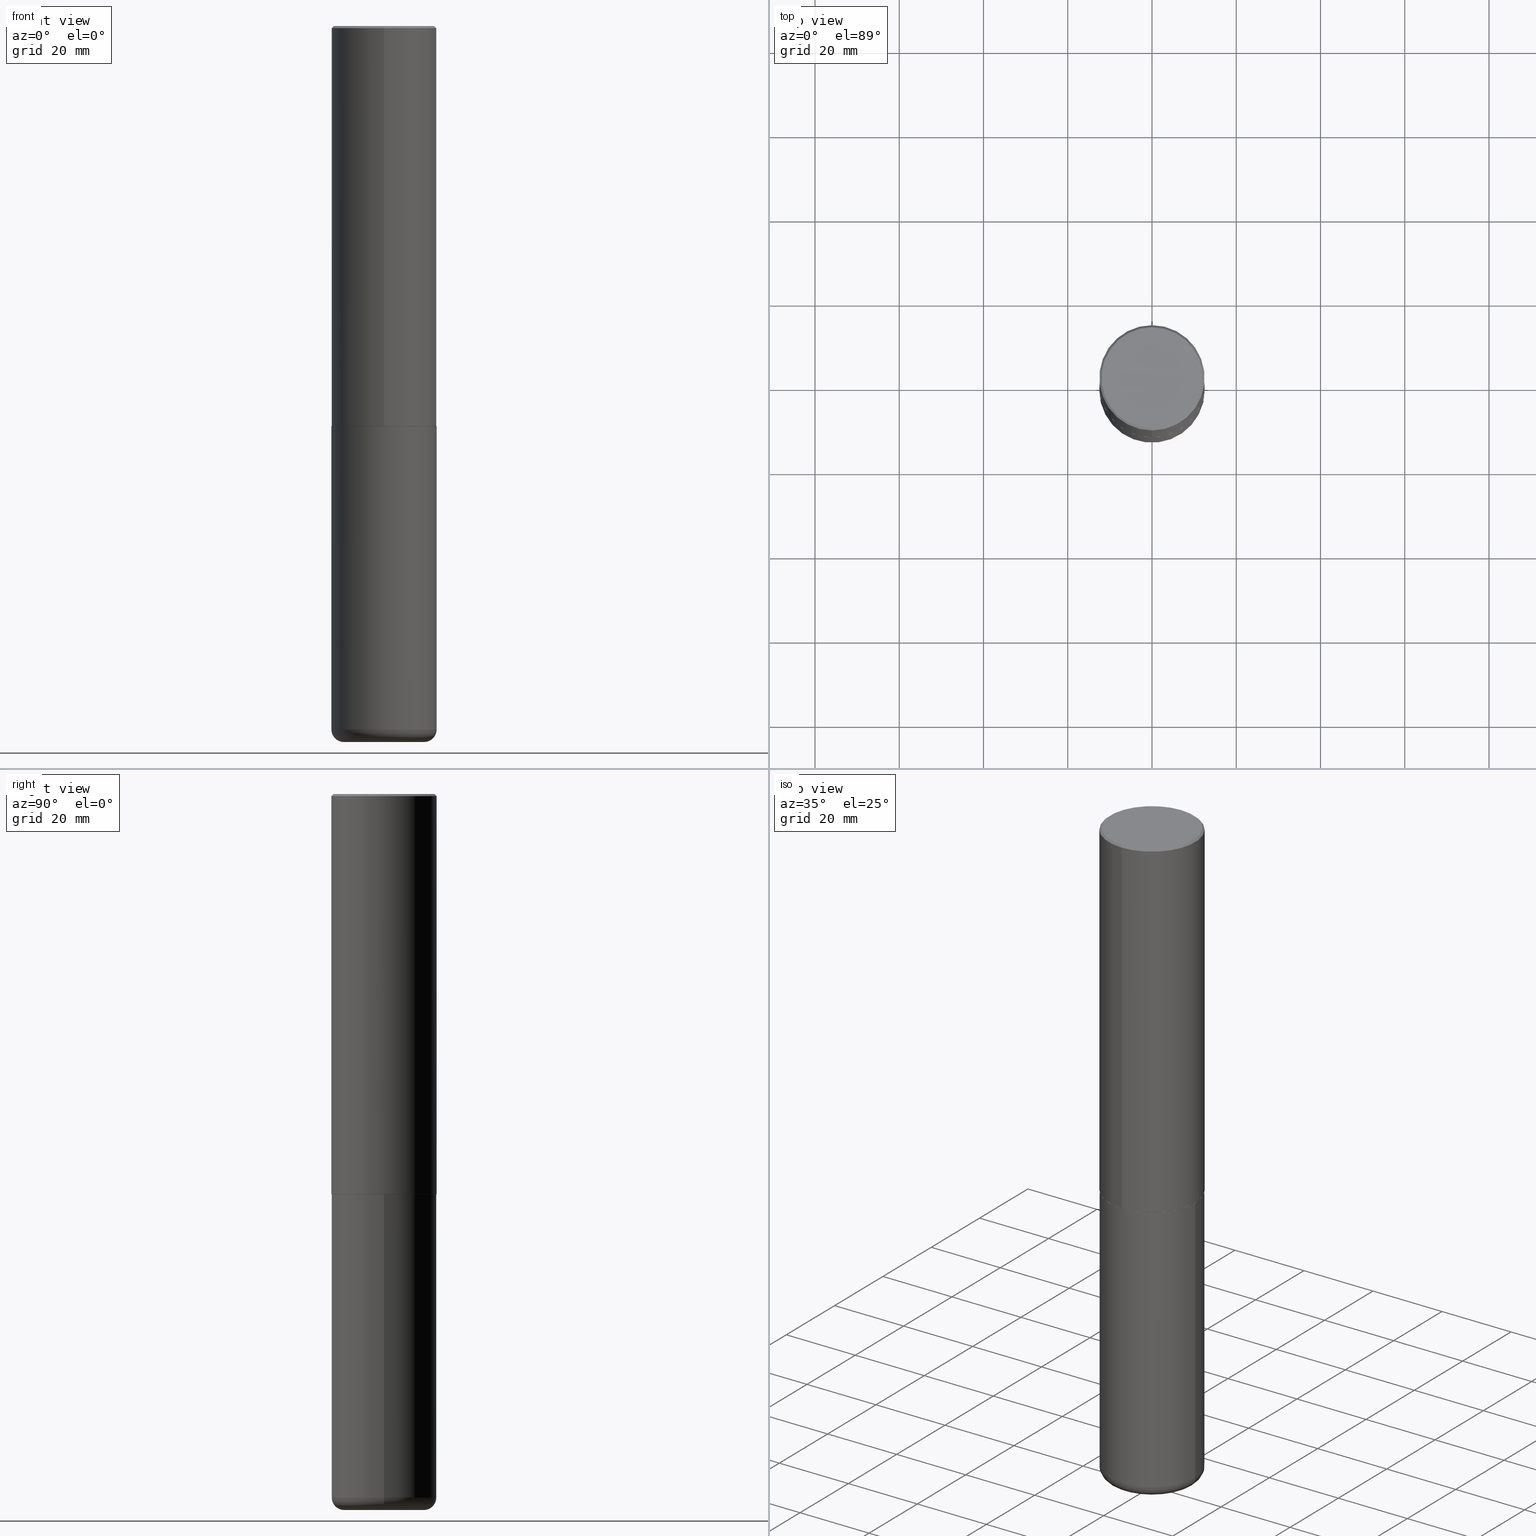
[diagram: canonical four-view strip — front | top / right | iso, engineering-drawing reading convention]
A machine part, canonical four-view strip (front | top / right | iso — engineering-drawing reading convention). The complete STEP part file that produces these views, byte-faithful:
ISO-10303-21;
HEADER;
FILE_DESCRIPTION (( 'STEP AP203' ),
    '1' );
FILE_NAME ('47624.STEP',
    '2024-03-06T19:43:23',
    ( '' ),
    ( '' ),
    'SwSTEP 2.0',
    'SolidWorks 2023',
    '' );
FILE_SCHEMA (( 'CONFIG_CONTROL_DESIGN' ));
ENDSEC;

DATA;
#1 = CARTESIAN_POINT ( 'NONE',  ( 0.000000000000000000, 0.000000000000000000, 0.000000000000000000 ) ) ;
#2 = ORIENTED_EDGE ( 'NONE', *, *, #140, .F. ) ;
#3 = VECTOR ( 'NONE', #330, 39.37007874015748143 ) ;
#4 = AXIS2_PLACEMENT_3D ( 'NONE', #415, #261, #34 ) ;
#5 = DIRECTION ( 'NONE',  ( 6.982962677686265922E-15, 1.000000000000000000, -3.486624039460257331E-15 ) ) ;
#6 = VERTEX_POINT ( 'NONE', #179 ) ;
#7 = COORDINATED_UNIVERSAL_TIME_OFFSET ( 5, 0, .BEHIND. ) ;
#8 = ORIENTED_EDGE ( 'NONE', *, *, #373, .T. ) ;
#9 = LINE ( 'NONE', #110, #3 ) ;
#10 = AXIS2_PLACEMENT_3D ( 'NONE', #214, #92, #345 ) ;
#11 = DIRECTION ( 'NONE',  ( 2.438088387897960049E-29, -3.491481338843145188E-15, -1.000000000000000000 ) ) ;
#12 = APPROVAL_DATE_TIME ( #234, #43 ) ;
#13 = PLANE ( 'NONE',  #376 ) ;
#14 = EDGE_CURVE ( 'NONE', #258, #360, #259, .T. ) ;
#15 = APPLICATION_PROTOCOL_DEFINITION ( 'international standard', 'config_control_design', 1994, #253 ) ;
#16 = DIRECTION ( 'NONE',  ( -2.445468806185136597E-29, 3.491481338843145583E-15, 1.000000000000000000 ) ) ;
#17 = CIRCLE ( 'NONE', #255, 0.1181000000000000383 ) ;
#18 = CARTESIAN_POINT ( 'NONE',  ( 4.891953188903329688E-31, -6.981508314288001687E-17, -0.02000000000000010797 ) ) ;
#19 = CARTESIAN_POINT ( 'NONE',  ( 0.000000000000000000, 0.000000000000000000, 0.000000000000000000 ) ) ;
#20 = CARTESIAN_POINT ( 'NONE',  ( 0.000000000000000000, 0.000000000000000000, 0.000000000000000000 ) ) ;
#21 = APPLICATION_CONTEXT ( 'configuration controlled 3d designs of mechanical parts and assemblies' ) ;
#22 = VECTOR ( 'NONE', #239, 39.37007874015748143 ) ;
#23 = AXIS2_PLACEMENT_3D ( 'NONE', #359, #65, #29 ) ;
#24 = LINE ( 'NONE', #28, #122 ) ;
#25 = ADVANCED_FACE ( 'NONE', ( #79 ), #82, .T. ) ;
#26 = CARTESIAN_POINT ( 'NONE',  ( 0.4921499999999999764, -3.436665081823295777E-15, 2.399810400207969603E-29 ) ) ;
#27 = ADVANCED_FACE ( 'NONE', ( #270 ), #13, .T. ) ;
#28 = CARTESIAN_POINT ( 'NONE',  ( -0.4921499999999999764, 3.496936074043332897E-15, -2.420853904668951509E-29 ) ) ;
#29 = DIRECTION ( 'NONE',  ( -1.000000000000000000, 7.105427357601001859E-15, 0.000000000000000000 ) ) ;
#30 = CIRCLE ( 'NONE', #153, 0.4721499999999996255 ) ;
#31 = ORIENTED_EDGE ( 'NONE', *, *, #74, .F. ) ;
#32 = LOCAL_TIME ( 14, 43, 23.00000000000000000, #271 ) ;
#33 = PRODUCT_RELATED_PRODUCT_CATEGORY ( 'detail', '', ( #362 ) ) ;
#34 = DIRECTION ( 'NONE',  ( 6.982962677686265922E-15, 1.000000000000000000, -3.486624039460257331E-15 ) ) ;
#35 = ORIENTED_EDGE ( 'NONE', *, *, #124, .T. ) ;
#36 = ORIENTED_EDGE ( 'NONE', *, *, #124, .F. ) ;
#37 = LINE ( 'NONE', #73, #228 ) ;
#38 = ORIENTED_EDGE ( 'NONE', *, *, #88, .T. ) ;
#39 = AXIS2_PLACEMENT_3D ( 'NONE', #19, #346, #184 ) ;
#40 = APPROVAL_PERSON_ORGANIZATION ( #113, #310, #367 ) ;
#41 = DIRECTION ( 'NONE',  ( -2.445976594451651672E-29, 3.490754157143982552E-15, 1.000000000000000000 ) ) ;
#42 = ORIENTED_EDGE ( 'NONE', *, *, #247, .T. ) ;
#43 = APPROVAL ( #49, 'UNSPECIFIED' ) ;
#44 = COORDINATED_UNIVERSAL_TIME_OFFSET ( 5, 0, .BEHIND. ) ;
#45 = LINE ( 'NONE', #300, #22 ) ;
#46 = CARTESIAN_POINT ( 'NONE',  ( 9.145751084314172604E-29, -1.305227886897706845E-14, -3.739100000000000534 ) ) ;
#47 = CIRCLE ( 'NONE', #327, 0.4911499999999999755 ) ;
#48 = LOCAL_TIME ( 14, 43, 23.00000000000000000, #266 ) ;
#49 = APPROVAL_STATUS ( 'not_yet_approved' ) ;
#50 = LINE ( 'NONE', #85, #89 ) ;
#51 = APPROVAL_STATUS ( 'not_yet_approved' ) ;
#52 = ORIENTED_EDGE ( 'NONE', *, *, #14, .T. ) ;
#53 = APPROVAL_DATE_TIME ( #210, #310 ) ;
#54 = EDGE_LOOP ( 'NONE', ( #42, #139, #2, #31 ) ) ;
#55 = EDGE_CURVE ( 'NONE', #326, #101, #408, .T. ) ;
#56 = CC_DESIGN_APPROVAL ( #310, ( #221 ) ) ;
#57 = DIRECTION ( 'NONE',  ( 1.000000000000000000, -6.982962677686265133E-15, 0.000000000000000000 ) ) ;
#58 = FACE_OUTER_BOUND ( 'NONE', #75, .T. ) ;
#59 = CARTESIAN_POINT ( 'NONE',  ( 9.145751084314172604E-29, -1.305227886897706845E-14, -3.739100000000000534 ) ) ;
#60 = AXIS2_PLACEMENT_3D ( 'NONE', #59, #188, #189 ) ;
#61 = EDGE_CURVE ( 'NONE', #289, #386, #167, .T. ) ;
#62 = APPROVAL_PERSON_ORGANIZATION ( #338, #43, #145 ) ;
#63 = CARTESIAN_POINT ( 'NONE',  ( -3.429682119145517860E-15, -0.4911500000000130206, -3.740099999999998204 ) ) ;
#64 = FACE_OUTER_BOUND ( 'NONE', #54, .T. ) ;
#65 = DIRECTION ( 'NONE',  ( 7.105427357601001859E-15, 1.000000000000000000, -3.491481338843145583E-15 ) ) ;
#66 = ORIENTED_EDGE ( 'NONE', *, *, #273, .T. ) ;
#67 = EDGE_CURVE ( 'NONE', #386, #289, #30, .T. ) ;
#68 = AXIS2_PLACEMENT_3D ( 'NONE', #282, #91, #57 ) ;
#69 = EDGE_LOOP ( 'NONE', ( #129, #246 ) ) ;
#70 = ORIENTED_EDGE ( 'NONE', *, *, #269, .F. ) ;
#71 = FACE_OUTER_BOUND ( 'NONE', #231, .T. ) ;
#72 = ORIENTED_EDGE ( 'NONE', *, *, #140, .T. ) ;
#73 = CARTESIAN_POINT ( 'NONE',  ( -3.436665081823296565E-15, -0.4921500000000000874, 1.717974658438411319E-15 ) ) ;
#74 = EDGE_CURVE ( 'NONE', #262, #163, #50, .T. ) ;
#75 = EDGE_LOOP ( 'NONE', ( #202, #372, #103, #107 ) ) ;
#76 = AXIS2_PLACEMENT_3D ( 'NONE', #294, #160, #105 ) ;
#77 = DIRECTION ( 'NONE',  ( -2.445976594451651952E-29, 3.490754157143982552E-15, 1.000000000000000000 ) ) ;
#78 = PERSON_AND_ORGANIZATION_ROLE ( 'classification_officer' ) ;
#79 = FACE_OUTER_BOUND ( 'NONE', #354, .T. ) ;
#80 = ADVANCED_FACE ( 'NONE', ( #245 ), #177, .T. ) ;
#81 = ORIENTED_EDGE ( 'NONE', *, *, #67, .F. ) ;
#82 = TOROIDAL_SURFACE ( 'NONE', #133, 0.3740499999999999381, 0.1181000000000000660 ) ;
#83 = CIRCLE ( 'NONE', #193, 0.4911499999999999755 ) ;
#84 = EDGE_LOOP ( 'NONE', ( #288, #400, #356, #275 ) ) ;
#85 = CARTESIAN_POINT ( 'NONE',  ( -3.429682119145517860E-15, -0.4911500000000130206, -3.740099999999998204 ) ) ;
#86 = MANIFOLD_SOLID_BREP ( 'Body-Move/Copy2[1]', #216 ) ;
#87 = CARTESIAN_POINT ( 'NONE',  ( 9.148197060908621523E-29, -1.305576962313420868E-14, -3.740099999999999980 ) ) ;
#88 = EDGE_CURVE ( 'NONE', #360, #258, #321, .T. ) ;
#89 = VECTOR ( 'NONE', #114, 39.37007874015748143 ) ;
#90 = CONICAL_SURFACE ( 'NONE', #389, 0.4921499999999999209, 0.7853981633974467247 ) ;
#91 = DIRECTION ( 'NONE',  ( -2.445468806185136597E-29, 3.491481338843145583E-15, 1.000000000000000000 ) ) ;
#92 = DIRECTION ( 'NONE',  ( -2.445976594451651392E-29, 3.490754157143982552E-15, 1.000000000000000000 ) ) ;
#93 = CARTESIAN_POINT ( 'NONE',  ( 9.146297882013029477E-29, -1.305848935540725085E-14, -3.740100000000000424 ) ) ;
#94 = AXIS2_PLACEMENT_3D ( 'NONE', #46, #303, #143 ) ;
#95 = CC_DESIGN_APPROVAL ( #236, ( #159 ) ) ;
#96 = CARTESIAN_POINT ( 'NONE',  ( 1.607846830690603466E-28, -2.295579150662591525E-14, -6.574799999999999756 ) ) ;
#97 = CARTESIAN_POINT ( 'NONE',  ( 0.000000000000000000, 0.000000000000000000, 0.000000000000000000 ) ) ;
#98 = CARTESIAN_POINT ( 'NONE',  ( 9.146297882013029477E-29, -1.305848935540725085E-14, -3.740100000000000424 ) ) ;
#99 = FACE_OUTER_BOUND ( 'NONE', #298, .T. ) ;
#100 = AXIS2_PLACEMENT_3D ( 'NONE', #98, #324, #136 ) ;
#101 = VERTEX_POINT ( 'NONE', #237 ) ;
#102 = PLANE ( 'NONE',  #76 ) ;
#103 = ORIENTED_EDGE ( 'NONE', *, *, #269, .T. ) ;
#104 = CC_DESIGN_PERSON_AND_ORGANIZATION_ASSIGNMENT ( #212, #403, ( #221 ) ) ;
#105 = DIRECTION ( 'NONE',  ( 6.982962677686265922E-15, 1.000000000000000000, -3.490754157143982552E-15 ) ) ;
#106 = DATE_AND_TIME ( #243, #48 ) ;
#107 = ORIENTED_EDGE ( 'NONE', *, *, #209, .F. ) ;
#108 = CONICAL_SURFACE ( 'NONE', #4, 0.4921499999999999209, 0.7853981633974467247 ) ;
#109 = DIRECTION ( 'NONE',  ( 0.000000000000000000, 0.000000000000000000, 1.000000000000000000 ) ) ;
#110 = CARTESIAN_POINT ( 'NONE',  ( 3.496936074043333291E-15, 0.4921500000000000874, -1.717974658438411319E-15 ) ) ;
#111 = PERSON_AND_ORGANIZATION ( #337, #409 ) ;
#112 = DIRECTION ( 'NONE',  ( 1.000000000000000000, -6.982962677686265133E-15, 0.000000000000000000 ) ) ;
#113 = PERSON_AND_ORGANIZATION ( #337, #409 ) ;
#114 = DIRECTION ( 'NONE',  ( -4.937700262167413974E-15, -0.7071067811869555797, 0.7071067811861394548 ) ) ;
#115 = AXIS2_PLACEMENT_3D ( 'NONE', #211, #77, #181 ) ;
#116 = LOCAL_TIME ( 14, 43, 23.00000000000000000, #7 ) ;
#117 = PERSON_AND_ORGANIZATION ( #337, #409 ) ;
#118 = CARTESIAN_POINT ( 'NONE',  ( 1.607846830690603466E-28, -2.295579150662591525E-14, -6.574799999999999756 ) ) ;
#119 = EDGE_CURVE ( 'NONE', #175, #360, #9, .T. ) ;
#120 = FACE_OUTER_BOUND ( 'NONE', #364, .T. ) ;
#121 = LINE ( 'NONE', #26, #191 ) ;
#122 = VECTOR ( 'NONE', #154, 39.37007874015748143 ) ;
#123 = CARTESIAN_POINT ( 'NONE',  ( -3.376394089603257868E-15, -0.4921499999999999764, -0.01999999999999839059 ) ) ;
#124 = EDGE_CURVE ( 'NONE', #289, #360, #45, .T. ) ;
#125 = CARTESIAN_POINT ( 'NONE',  ( 0.4921499999999999764, -1.649515443723054663E-14, -3.740100000000000424 ) ) ;
#126 = DIRECTION ( 'NONE',  ( -6.982962677686265922E-15, -1.000000000000000000, 3.490754157143982552E-15 ) ) ;
#127 = AXIS2_PLACEMENT_3D ( 'NONE', #20, #378, #126 ) ;
#128 = CARTESIAN_POINT ( 'NONE',  ( 3.436665081823295777E-15, 0.4921499999999998098, -0.02000000000000182188 ) ) ;
#129 = ORIENTED_EDGE ( 'NONE', *, *, #222, .T. ) ;
#130 = VERTEX_POINT ( 'NONE', #366 ) ;
#131 = ADVANCED_BREP_SHAPE_REPRESENTATION ( '47624', ( #86, #224, #309 ), #187 ) ;
#132 = DIRECTION ( 'NONE',  ( 1.000000000000000000, -6.982962677686265133E-15, 0.000000000000000000 ) ) ;
#133 = AXIS2_PLACEMENT_3D ( 'NONE', #118, #16, #368 ) ;
#134 = CIRCLE ( 'NONE', #23, 0.1181000000000000383 ) ;
#135 = ORIENTED_EDGE ( 'NONE', *, *, #265, .F. ) ;
#136 = DIRECTION ( 'NONE',  ( 1.000000000000000000, -6.982962677686265922E-15, 0.000000000000000000 ) ) ;
#137 = ORIENTED_EDGE ( 'NONE', *, *, #157, .T. ) ;
#138 = SECURITY_CLASSIFICATION_LEVEL ( 'unclassified' ) ;
#139 = ORIENTED_EDGE ( 'NONE', *, *, #393, .T. ) ;
#140 = EDGE_CURVE ( 'NONE', #163, #175, #307, .T. ) ;
#141 = DIRECTION ( 'NONE',  ( 1.000000000000000000, 0.000000000000000000, 0.000000000000000000 ) ) ;
#142 = DIRECTION ( 'NONE',  ( -2.445468806185136597E-29, 3.491481338843145583E-15, 1.000000000000000000 ) ) ;
#143 = DIRECTION ( 'NONE',  ( -6.982962677686265922E-15, -1.000000000000000000, 3.330506545156063496E-15 ) ) ;
#144 = CARTESIAN_POINT ( 'NONE',  ( 1.636727817291649966E-28, -2.336813545274328780E-14, -6.692899999999999849 ) ) ;
#145 = APPROVAL_ROLE ( '' ) ;
#146 = DIRECTION ( 'NONE',  ( -6.982962677686265922E-15, -1.000000000000000000, 3.490754157143982946E-15 ) ) ;
#147 = CC_DESIGN_PERSON_AND_ORGANIZATION_ASSIGNMENT ( #117, #206, ( #221 ) ) ;
#148 = ORIENTED_EDGE ( 'NONE', *, *, #222, .F. ) ;
#149 = FACE_OUTER_BOUND ( 'NONE', #398, .T. ) ;
#150 = PRODUCT_DEFINITION_SHAPE ( 'NONE', 'NONE',  #215 ) ;
#151 = ADVANCED_FACE ( 'NONE', ( #272 ), #411, .T. ) ;
#152 = FACE_OUTER_BOUND ( 'NONE', #305, .T. ) ;
#153 = AXIS2_PLACEMENT_3D ( 'NONE', #205, #404, #332 ) ;
#154 = DIRECTION ( 'NONE',  ( -2.445468806185136877E-29, 3.491481338843145188E-15, 1.000000000000000000 ) ) ;
#155 = DIRECTION ( 'NONE',  ( 2.438088387897960049E-29, -3.491481338843145188E-15, -1.000000000000000000 ) ) ;
#156 = CARTESIAN_POINT ( 'NONE',  ( 3.366835455046432084E-15, 0.4721499999999996255, -1.426540264649568516E-15 ) ) ;
#157 = EDGE_CURVE ( 'NONE', #351, #173, #121, .T. ) ;
#158 = UNCERTAINTY_MEASURE_WITH_UNIT (LENGTH_MEASURE( 1.000000000000000082E-05 ), #196, 'distance_accuracy_value', 'NONE');
#159 = SECURITY_CLASSIFICATION ( '', '', #138 ) ;
#160 = DIRECTION ( 'NONE',  ( 2.445976594451651392E-29, -3.490754157143982552E-15, -1.000000000000000000 ) ) ;
#161 = ORIENTED_EDGE ( 'NONE', *, *, #286, .F. ) ;
#162 = LINE ( 'NONE', #263, #192 ) ;
#163 = VERTEX_POINT ( 'NONE', #281 ) ;
#164 = DIMENSIONAL_EXPONENTS ( 1.000000000000000000, 0.000000000000000000, 0.000000000000000000, 0.000000000000000000, 0.000000000000000000, 0.000000000000000000, 0.000000000000000000 ) ;
#165 = ORIENTED_EDGE ( 'NONE', *, *, #74, .T. ) ;
#166 = FACE_OUTER_BOUND ( 'NONE', #169, .T. ) ;
#167 = CIRCLE ( 'NONE', #369, 0.4721499999999996255 ) ;
#168 = CIRCLE ( 'NONE', #315, 0.4921500000000000319 ) ;
#169 = EDGE_LOOP ( 'NONE', ( #161, #241, #137, #418 ) ) ;
#170 = CARTESIAN_POINT ( 'NONE',  ( -0.3740499999999999381, -2.008460289110760576E-14, -6.692899999999999849 ) ) ;
#171 = ORIENTED_EDGE ( 'NONE', *, *, #14, .F. ) ;
#172 = DATE_TIME_ROLE ( 'classification_date' ) ;
#173 = VERTEX_POINT ( 'NONE', #125 ) ;
#174 = TOROIDAL_SURFACE ( 'NONE', #277, 0.3740499999999999381, 0.1181000000000000660 ) ;
#175 = VERTEX_POINT ( 'NONE', #254 ) ;
#176 = DATE_TIME_ROLE ( 'creation_date' ) ;
#177 = CYLINDRICAL_SURFACE ( 'NONE', #402, 0.4921499999999999764 ) ;
#178 = CALENDAR_DATE ( 2024, 6, 3 ) ;
#179 = CARTESIAN_POINT ( 'NONE',  ( -0.4921499999999999764, -1.451020435697325173E-14, -3.740100000000000424 ) ) ;
#180 = CC_DESIGN_PERSON_AND_ORGANIZATION_ASSIGNMENT ( #274, #304, ( #362 ) ) ;
#181 = DIRECTION ( 'NONE',  ( -6.982962677686265922E-15, -1.000000000000000000, 3.486624039460257331E-15 ) ) ;
#182 = CIRCLE ( 'NONE', #235, 0.3740499999999999381 ) ;
#183 = CARTESIAN_POINT ( 'NONE',  ( 9.148197060908621523E-29, -1.305576962313420868E-14, -3.740099999999999980 ) ) ;
#184 = DIRECTION ( 'NONE',  ( -6.982962677686265922E-15, -1.000000000000000000, 3.490754157143982552E-15 ) ) ;
#185 = CARTESIAN_POINT ( 'NONE',  ( 1.636727817291649966E-28, -2.336813545274328780E-14, -6.692899999999999849 ) ) ;
#186 = CONICAL_SURFACE ( 'NONE', #361, 0.4911499999999999755, 0.7853981633980288146 ) ;
#187 =( GEOMETRIC_REPRESENTATION_CONTEXT ( 3 ) GLOBAL_UNCERTAINTY_ASSIGNED_CONTEXT ( ( #158 ) ) GLOBAL_UNIT_ASSIGNED_CONTEXT ( ( #196, #225, #194 ) ) REPRESENTATION_CONTEXT ( 'NONE', 'WORKASPACE' ) );
#188 = DIRECTION ( 'NONE',  ( -2.445976594451651952E-29, 3.490754157143982552E-15, 1.000000000000000000 ) ) ;
#189 = DIRECTION ( 'NONE',  ( -6.982962677686265922E-15, -1.000000000000000000, 3.330506545156063496E-15 ) ) ;
#190 = ADVANCED_FACE ( 'NONE', ( #407 ), #249, .F. ) ;
#191 = VECTOR ( 'NONE', #217, 39.37007874015748143 ) ;
#192 = VECTOR ( 'NONE', #350, 39.37007874015748854 ) ;
#193 = AXIS2_PLACEMENT_3D ( 'NONE', #256, #226, #232 ) ;
#194 =( NAMED_UNIT ( * ) SI_UNIT ( $, .STERADIAN. ) SOLID_ANGLE_UNIT ( ) );
#195 = ADVANCED_FACE ( 'NONE', ( #412 ), #377, .F. ) ;
#196 =( CONVERSION_BASED_UNIT ( 'INCH', #353 ) LENGTH_UNIT ( ) NAMED_UNIT ( #164 ) );
#197 = ORIENTED_EDGE ( 'NONE', *, *, #318, .F. ) ;
#198 = DIRECTION ( 'NONE',  ( 2.445976594451651952E-29, -3.490754157143982552E-15, -1.000000000000000000 ) ) ;
#199 = ORIENTED_EDGE ( 'NONE', *, *, #67, .T. ) ;
#200 = CYLINDRICAL_SURFACE ( 'NONE', #208, 0.4921499999999999764 ) ;
#201 = APPROVAL_PERSON_ORGANIZATION ( #363, #236, #394 ) ;
#202 = ORIENTED_EDGE ( 'NONE', *, *, #373, .F. ) ;
#203 = CALENDAR_DATE ( 2024, 6, 3 ) ;
#204 = DIRECTION ( 'NONE',  ( -2.445468806185136597E-29, 3.491481338843145583E-15, 1.000000000000000000 ) ) ;
#205 = CARTESIAN_POINT ( 'NONE',  ( -5.420756467185317189E-45, 7.736185299407739239E-31, 2.216193106459615290E-16 ) ) ;
#206 = PERSON_AND_ORGANIZATION_ROLE ( 'design_supplier' ) ;
#207 = DIRECTION ( 'NONE',  ( -2.445976594451651952E-29, 3.490754157143982552E-15, 1.000000000000000000 ) ) ;
#208 = AXIS2_PLACEMENT_3D ( 'NONE', #97, #328, #414 ) ;
#209 = EDGE_CURVE ( 'NONE', #233, #351, #250, .T. ) ;
#210 = DATE_AND_TIME ( #178, #32 ) ;
#211 = CARTESIAN_POINT ( 'NONE',  ( 4.891953188903329688E-31, -6.981508314288001687E-17, -0.02000000000000010797 ) ) ;
#212 = PERSON_AND_ORGANIZATION ( #337, #409 ) ;
#213 = ORIENTED_EDGE ( 'NONE', *, *, #318, .T. ) ;
#214 = CARTESIAN_POINT ( 'NONE',  ( 9.148197060908621523E-29, -1.305576962313420868E-14, -3.740099999999999980 ) ) ;
#215 = PRODUCT_DEFINITION ( 'UNKNOWN', '', #221, #352 ) ;
#216 = CLOSED_SHELL ( 'NONE', ( #80, #25, #195, #417, #240, #27 ) ) ;
#217 = DIRECTION ( 'NONE',  ( -2.445468806185136877E-29, 3.491481338843145188E-15, 1.000000000000000000 ) ) ;
#218 = CYLINDRICAL_SURFACE ( 'NONE', #127, 0.4921500000000000874 ) ;
#219 = DIRECTION ( 'NONE',  ( -2.445468806185136597E-29, 3.491481338843145583E-15, 1.000000000000000000 ) ) ;
#220 = AXIS2_PLACEMENT_3D ( 'NONE', #93, #219, #251 ) ;
#221 = PRODUCT_DEFINITION_FORMATION_WITH_SPECIFIED_SOURCE ( 'ANY', '', #362, .NOT_KNOWN. ) ;
#222 = EDGE_CURVE ( 'NONE', #173, #6, #381, .T. ) ;
#223 = CARTESIAN_POINT ( 'NONE',  ( 9.146297882013029477E-29, -1.305848935540725085E-14, -3.740100000000000424 ) ) ;
#224 = MANIFOLD_SOLID_BREP ( 'Body-Move/Copy2[2]', #341 ) ;
#225 =( NAMED_UNIT ( * ) PLANE_ANGLE_UNIT ( ) SI_UNIT ( $, .RADIAN. ) );
#226 = DIRECTION ( 'NONE',  ( -2.445976594451651952E-29, 3.490754157143982552E-15, 1.000000000000000000 ) ) ;
#227 = AXIS2_PLACEMENT_3D ( 'NONE', #18, #280, #405 ) ;
#228 = VECTOR ( 'NONE', #41, 39.37007874015748143 ) ;
#229 = ORIENTED_EDGE ( 'NONE', *, *, #61, .F. ) ;
#230 = DIRECTION ( 'NONE',  ( -2.445468806185136597E-29, 3.491481338843145583E-15, 1.000000000000000000 ) ) ;
#231 = EDGE_LOOP ( 'NONE', ( #81, #213, #52, #36 ) ) ;
#232 = DIRECTION ( 'NONE',  ( -6.982962677686265922E-15, -1.000000000000000000, 3.337287582609300506E-15 ) ) ;
#233 = VERTEX_POINT ( 'NONE', #248 ) ;
#234 = DATE_AND_TIME ( #297, #293 ) ;
#235 = AXIS2_PLACEMENT_3D ( 'NONE', #185, #375, #314 ) ;
#236 = APPROVAL ( #306, 'UNSPECIFIED' ) ;
#237 = CARTESIAN_POINT ( 'NONE',  ( 0.3740499999999999381, -2.598011264233183690E-14, -6.692899999999999849 ) ) ;
#238 = DATE_AND_TIME ( #268, #279 ) ;
#239 = DIRECTION ( 'NONE',  ( 4.937700262164540154E-15, 0.7071067811865440200, -0.7071067811865511255 ) ) ;
#240 = ADVANCED_FACE ( 'NONE', ( #58 ), #174, .T. ) ;
#241 = ORIENTED_EDGE ( 'NONE', *, *, #209, .T. ) ;
#242 = ADVANCED_FACE ( 'NONE', ( #152 ), #218, .T. ) ;
#243 = CALENDAR_DATE ( 2024, 6, 3 ) ;
#244 = CIRCLE ( 'NONE', #60, 0.4921500000000003650 ) ;
#245 = FACE_OUTER_BOUND ( 'NONE', #291, .T. ) ;
#246 = ORIENTED_EDGE ( 'NONE', *, *, #383, .T. ) ;
#247 = EDGE_CURVE ( 'NONE', #262, #130, #47, .T. ) ;
#248 = CARTESIAN_POINT ( 'NONE',  ( -0.4921499999999999764, -1.945885543258258157E-14, -6.574799999999999756 ) ) ;
#249 = PLANE ( 'NONE',  #10 ) ;
#250 = CIRCLE ( 'NONE', #68, 0.4921500000000000319 ) ;
#251 = DIRECTION ( 'NONE',  ( 1.000000000000000000, -6.982962677686265922E-15, 0.000000000000000000 ) ) ;
#252 = ADVANCED_FACE ( 'NONE', ( #64 ), #186, .T. ) ;
#253 = APPLICATION_CONTEXT ( 'configuration controlled 3d designs of mechanical parts and assemblies' ) ;
#254 = CARTESIAN_POINT ( 'NONE',  ( 3.496936074043380229E-15, 0.4921499999999873198, -3.739100000000002311 ) ) ;
#255 = AXIS2_PLACEMENT_3D ( 'NONE', #316, #380, #317 ) ;
#256 = CARTESIAN_POINT ( 'NONE',  ( 9.148197060908621523E-29, -1.305576962313420868E-14, -3.740099999999999980 ) ) ;
#257 = LINE ( 'NONE', #385, #348 ) ;
#258 = VERTEX_POINT ( 'NONE', #123 ) ;
#259 = CIRCLE ( 'NONE', #115, 0.4921499999999999209 ) ;
#260 = AXIS2_PLACEMENT_3D ( 'NONE', #87, #342, #311 ) ;
#261 = DIRECTION ( 'NONE',  ( 2.445976594451651952E-29, -3.490754157143982552E-15, -1.000000000000000000 ) ) ;
#262 = VERTEX_POINT ( 'NONE', #63 ) ;
#263 = CARTESIAN_POINT ( 'NONE',  ( -3.376394089603257868E-15, -0.4921499999999999764, -0.01999999999999839059 ) ) ;
#264 = ORIENTED_EDGE ( 'NONE', *, *, #119, .T. ) ;
#265 = EDGE_CURVE ( 'NONE', #175, #163, #244, .T. ) ;
#266 = COORDINATED_UNIVERSAL_TIME_OFFSET ( 5, 0, .BEHIND. ) ;
#267 = ORIENTED_EDGE ( 'NONE', *, *, #157, .F. ) ;
#268 = CALENDAR_DATE ( 2024, 6, 3 ) ;
#269 = EDGE_CURVE ( 'NONE', #101, #351, #17, .T. ) ;
#270 = FACE_OUTER_BOUND ( 'NONE', #397, .T. ) ;
#271 = COORDINATED_UNIVERSAL_TIME_OFFSET ( 5, 0, .BEHIND. ) ;
#272 = FACE_OUTER_BOUND ( 'NONE', #84, .T. ) ;
#273 = EDGE_CURVE ( 'NONE', #101, #326, #182, .T. ) ;
#274 = PERSON_AND_ORGANIZATION ( #337, #409 ) ;
#275 = ORIENTED_EDGE ( 'NONE', *, *, #88, .F. ) ;
#276 = COORDINATED_UNIVERSAL_TIME_OFFSET ( 5, 0, .BEHIND. ) ;
#277 = AXIS2_PLACEMENT_3D ( 'NONE', #96, #283, #312 ) ;
#278 = CARTESIAN_POINT ( 'NONE',  ( 1.636727817291649966E-28, -2.336813545274328780E-14, -6.692899999999999849 ) ) ;
#279 = LOCAL_TIME ( 14, 43, 23.00000000000000000, #44 ) ;
#280 = DIRECTION ( 'NONE',  ( -2.445976594451651952E-29, 3.490754157143982552E-15, 1.000000000000000000 ) ) ;
#281 = CARTESIAN_POINT ( 'NONE',  ( -3.436665081823207030E-15, -0.4921500000000134101, -3.739099999999998758 ) ) ;
#282 = CARTESIAN_POINT ( 'NONE',  ( 1.607846830690603466E-28, -2.295579150662591525E-14, -6.574799999999999756 ) ) ;
#283 = DIRECTION ( 'NONE',  ( -2.445468806185136597E-29, 3.491481338843145583E-15, 1.000000000000000000 ) ) ;
#284 = DIRECTION ( 'NONE',  ( -1.000000000000000000, 6.982962677686265922E-15, -4.876176775795935793E-29 ) ) ;
#285 = DIRECTION ( 'NONE',  ( -2.445976594451651952E-29, 3.490754157143982552E-15, 1.000000000000000000 ) ) ;
#286 = EDGE_CURVE ( 'NONE', #233, #6, #24, .T. ) ;
#287 = CARTESIAN_POINT ( 'NONE',  ( 0.4921499999999999764, -2.639245658844920945E-14, -6.574799999999999756 ) ) ;
#288 = ORIENTED_EDGE ( 'NONE', *, *, #119, .F. ) ;
#289 = VERTEX_POINT ( 'NONE', #156 ) ;
#290 = APPLICATION_PROTOCOL_DEFINITION ( 'international standard', 'config_control_design', 1994, #21 ) ;
#291 = EDGE_LOOP ( 'NONE', ( #329, #416, #148, #267 ) ) ;
#292 = AXIS2_PLACEMENT_3D ( 'NONE', #223, #155, #284 ) ;
#293 = LOCAL_TIME ( 14, 43, 23.00000000000000000, #276 ) ;
#294 = CARTESIAN_POINT ( 'NONE',  ( 3.297005828269567997E-15, 0.4721499999999996255, -1.537349919972549256E-15 ) ) ;
#295 = ORIENTED_EDGE ( 'NONE', *, *, #340, .F. ) ;
#296 = ADVANCED_FACE ( 'NONE', ( #120 ), #343, .T. ) ;
#297 = CALENDAR_DATE ( 2024, 6, 3 ) ;
#298 = EDGE_LOOP ( 'NONE', ( #197, #229, #35, #38 ) ) ;
#299 = APPROVAL_DATE_TIME ( #106, #236 ) ;
#300 = CARTESIAN_POINT ( 'NONE',  ( 3.436665081823295777E-15, 0.4921499999999998098, -0.02000000000000182188 ) ) ;
#301 = CC_DESIGN_PERSON_AND_ORGANIZATION_ASSIGNMENT ( #111, #399, ( #215 ) ) ;
#302 = PERSON_AND_ORGANIZATION ( #337, #409 ) ;
#303 = DIRECTION ( 'NONE',  ( -2.445976594451651952E-29, 3.490754157143982552E-15, 1.000000000000000000 ) ) ;
#304 = PERSON_AND_ORGANIZATION_ROLE ( 'design_owner' ) ;
#305 = EDGE_LOOP ( 'NONE', ( #72, #264, #171, #336 ) ) ;
#306 = APPROVAL_STATUS ( 'not_yet_approved' ) ;
#307 = CIRCLE ( 'NONE', #94, 0.4921500000000003650 ) ;
#308 = DIRECTION ( 'NONE',  ( 1.000000000000000000, -6.982962677686265922E-15, 4.876176775795935793E-29 ) ) ;
#309 = AXIS2_PLACEMENT_3D ( 'NONE', #1, #109, #141 ) ;
#310 = APPROVAL ( #51, 'UNSPECIFIED' ) ;
#311 = DIRECTION ( 'NONE',  ( -6.982962677686265922E-15, -1.000000000000000000, 3.337287582609300506E-15 ) ) ;
#312 = DIRECTION ( 'NONE',  ( 1.000000000000000000, -6.982962677686266711E-15, 4.883557194083112340E-29 ) ) ;
#313 = ADVANCED_FACE ( 'NONE', ( #149 ), #102, .F. ) ;
#314 = DIRECTION ( 'NONE',  ( 1.000000000000000000, -6.982962677686265133E-15, 0.000000000000000000 ) ) ;
#315 = AXIS2_PLACEMENT_3D ( 'NONE', #387, #230, #132 ) ;
#316 = CARTESIAN_POINT ( 'NONE',  ( 0.3740499999999999381, -2.556776869621446119E-14, -6.574799999999999756 ) ) ;
#317 = DIRECTION ( 'NONE',  ( 1.000000000000000000, -6.982962677686270655E-15, 0.000000000000000000 ) ) ;
#318 = EDGE_CURVE ( 'NONE', #386, #258, #162, .T. ) ;
#319 =( LENGTH_UNIT ( ) NAMED_UNIT ( * ) SI_UNIT ( $, .METRE. ) );
#320 = EDGE_LOOP ( 'NONE', ( #390, #395 ) ) ;
#321 = CIRCLE ( 'NONE', #227, 0.4921499999999999209 ) ;
#322 = ORIENTED_EDGE ( 'NONE', *, *, #325, .T. ) ;
#323 = ORIENTED_EDGE ( 'NONE', *, *, #55, .F. ) ;
#324 = DIRECTION ( 'NONE',  ( -2.445468806185136597E-29, 3.491481338843145583E-15, 1.000000000000000000 ) ) ;
#325 = EDGE_CURVE ( 'NONE', #130, #262, #83, .T. ) ;
#326 = VERTEX_POINT ( 'NONE', #170 ) ;
#327 = AXIS2_PLACEMENT_3D ( 'NONE', #349, #379, #410 ) ;
#328 = DIRECTION ( 'NONE',  ( -2.445468806185136597E-29, 3.491481338843145583E-15, 1.000000000000000000 ) ) ;
#329 = ORIENTED_EDGE ( 'NONE', *, *, #340, .T. ) ;
#330 = DIRECTION ( 'NONE',  ( -2.445976594451651672E-29, 3.490754157143982552E-15, 1.000000000000000000 ) ) ;
#331 = CC_DESIGN_DATE_AND_TIME_ASSIGNMENT ( #238, #172, ( #159 ) ) ;
#332 = DIRECTION ( 'NONE',  ( -6.982962677686265922E-15, -1.000000000000000000, 3.490754157143982946E-15 ) ) ;
#333 = AXIS2_PLACEMENT_3D ( 'NONE', #144, #204, #112 ) ;
#334 = DATE_AND_TIME ( #203, #116 ) ;
#335 = CARTESIAN_POINT ( 'NONE',  ( -5.420756467185317189E-45, 7.736185299407739239E-31, 2.216193106459615290E-16 ) ) ;
#336 = ORIENTED_EDGE ( 'NONE', *, *, #406, .F. ) ;
#337 = PERSON ( 'UNSPECIFIED', 'UNSPECIFIED', 'UNSPECIFIED', ('UNSPECIFIED'), ('UNSPECIFIED'), ('UNSPECIFIED') ) ;
#338 = PERSON_AND_ORGANIZATION ( #337, #409 ) ;
#339 = CARTESIAN_POINT ( 'NONE',  ( 0.000000000000000000, 0.000000000000000000, 0.000000000000000000 ) ) ;
#340 = EDGE_CURVE ( 'NONE', #351, #233, #168, .T. ) ;
#341 = CLOSED_SHELL ( 'NONE', ( #252, #242, #365, #344, #151, #296, #190, #313 ) ) ;
#342 = DIRECTION ( 'NONE',  ( -2.445976594451651952E-29, 3.490754157143982552E-15, 1.000000000000000000 ) ) ;
#343 = CONICAL_SURFACE ( 'NONE', #260, 0.4911499999999999755, 0.7853981633980288146 ) ;
#344 = ADVANCED_FACE ( 'NONE', ( #99 ), #108, .T. ) ;
#345 = DIRECTION ( 'NONE',  ( -6.982962677686265922E-15, -1.000000000000000000, 3.490754157143982552E-15 ) ) ;
#346 = DIRECTION ( 'NONE',  ( -2.445976594451651952E-29, 3.490754157143982552E-15, 1.000000000000000000 ) ) ;
#347 = DIRECTION ( 'NONE',  ( -6.982962677686265922E-15, -1.000000000000000000, 3.337287582609300506E-15 ) ) ;
#348 = VECTOR ( 'NONE', #357, 39.37007874015748143 ) ;
#349 = CARTESIAN_POINT ( 'NONE',  ( 9.148197060908621523E-29, -1.305576962313420868E-14, -3.740099999999999980 ) ) ;
#350 = DIRECTION ( 'NONE',  ( -4.851104656540955597E-15, -0.7071067811865487940, -0.7071067811865461294 ) ) ;
#351 = VERTEX_POINT ( 'NONE', #287 ) ;
#352 = DESIGN_CONTEXT ( 'detailed design', #253, 'design' ) ;
#353 = LENGTH_MEASURE_WITH_UNIT ( LENGTH_MEASURE( 0.02539999999999999897 ), #319 );
#354 = EDGE_LOOP ( 'NONE', ( #66, #8, #295, #70 ) ) ;
#355 = CC_DESIGN_SECURITY_CLASSIFICATION ( #159, ( #221 ) ) ;
#356 = ORIENTED_EDGE ( 'NONE', *, *, #406, .T. ) ;
#357 = DIRECTION ( 'NONE',  ( 5.024295867790978808E-15, 0.7071067811869604647, 0.7071067811861345698 ) ) ;
#358 = ORIENTED_EDGE ( 'NONE', *, *, #273, .F. ) ;
#359 = CARTESIAN_POINT ( 'NONE',  ( -0.3740499999999999381, -2.029800640351526055E-14, -6.574799999999999756 ) ) ;
#360 = VERTEX_POINT ( 'NONE', #128 ) ;
#361 = AXIS2_PLACEMENT_3D ( 'NONE', #183, #285, #347 ) ;
#362 = PRODUCT ( '47624', '47624', '', ( #396 ) ) ;
#363 = PERSON_AND_ORGANIZATION ( #337, #409 ) ;
#364 = EDGE_LOOP ( 'NONE', ( #388, #322, #165, #135 ) ) ;
#365 = ADVANCED_FACE ( 'NONE', ( #71 ), #90, .T. ) ;
#366 = CARTESIAN_POINT ( 'NONE',  ( 3.493383360364624690E-15, 0.4911499999999869304, -3.740100000000001312 ) ) ;
#367 = APPROVAL_ROLE ( '' ) ;
#368 = DIRECTION ( 'NONE',  ( 1.000000000000000000, -6.982962677686266711E-15, 4.883557194083112340E-29 ) ) ;
#369 = AXIS2_PLACEMENT_3D ( 'NONE', #335, #207, #146 ) ;
#370 = SHAPE_DEFINITION_REPRESENTATION ( #150, #131 ) ;
#371 = CIRCLE ( 'NONE', #100, 0.4921499999999999764 ) ;
#372 = ORIENTED_EDGE ( 'NONE', *, *, #55, .T. ) ;
#373 = EDGE_CURVE ( 'NONE', #326, #233, #134, .T. ) ;
#374 = DIRECTION ( 'NONE',  ( -1.000000000000000000, 6.982962677686265922E-15, -4.876176775795935793E-29 ) ) ;
#375 = DIRECTION ( 'NONE',  ( -2.445468806185136597E-29, 3.491481338843145583E-15, 1.000000000000000000 ) ) ;
#376 = AXIS2_PLACEMENT_3D ( 'NONE', #278, #11, #374 ) ;
#377 = PLANE ( 'NONE',  #292 ) ;
#378 = DIRECTION ( 'NONE',  ( -2.445976594451651952E-29, 3.490754157143982552E-15, 1.000000000000000000 ) ) ;
#379 = DIRECTION ( 'NONE',  ( -2.445976594451651952E-29, 3.490754157143982552E-15, 1.000000000000000000 ) ) ;
#380 = DIRECTION ( 'NONE',  ( -6.982962677686266711E-15, -1.000000000000000000, 3.491481338843145583E-15 ) ) ;
#381 = CIRCLE ( 'NONE', #220, 0.4921499999999999764 ) ;
#382 = CC_DESIGN_APPROVAL ( #43, ( #215 ) ) ;
#383 = EDGE_CURVE ( 'NONE', #6, #173, #371, .T. ) ;
#384 = CARTESIAN_POINT ( 'NONE',  ( 4.891953188903329688E-31, -6.981508314288001687E-17, -0.02000000000000010797 ) ) ;
#385 = CARTESIAN_POINT ( 'NONE',  ( 3.489830646685823002E-15, 0.4911499999999869304, -3.740100000000001312 ) ) ;
#386 = VERTEX_POINT ( 'NONE', #391 ) ;
#387 = CARTESIAN_POINT ( 'NONE',  ( 1.607846830690603466E-28, -2.295579150662591525E-14, -6.574799999999999756 ) ) ;
#388 = ORIENTED_EDGE ( 'NONE', *, *, #393, .F. ) ;
#389 = AXIS2_PLACEMENT_3D ( 'NONE', #384, #198, #5 ) ;
#390 = ORIENTED_EDGE ( 'NONE', *, *, #247, .F. ) ;
#391 = CARTESIAN_POINT ( 'NONE',  ( -3.307789109625541747E-15, -0.4721499999999996255, 1.869778885941491673E-15 ) ) ;
#392 = ORIENTED_EDGE ( 'NONE', *, *, #61, .T. ) ;
#393 = EDGE_CURVE ( 'NONE', #130, #175, #257, .T. ) ;
#394 = APPROVAL_ROLE ( '' ) ;
#395 = ORIENTED_EDGE ( 'NONE', *, *, #325, .F. ) ;
#396 = MECHANICAL_CONTEXT ( 'NONE', #21, 'mechanical' ) ;
#397 = EDGE_LOOP ( 'NONE', ( #358, #323 ) ) ;
#398 = EDGE_LOOP ( 'NONE', ( #392, #199 ) ) ;
#399 = PERSON_AND_ORGANIZATION_ROLE ( 'creator' ) ;
#400 = ORIENTED_EDGE ( 'NONE', *, *, #265, .T. ) ;
#401 = CC_DESIGN_DATE_AND_TIME_ASSIGNMENT ( #334, #176, ( #215 ) ) ;
#402 = AXIS2_PLACEMENT_3D ( 'NONE', #339, #142, #308 ) ;
#403 = PERSON_AND_ORGANIZATION_ROLE ( 'creator' ) ;
#404 = DIRECTION ( 'NONE',  ( -2.445976594451651952E-29, 3.490754157143982552E-15, 1.000000000000000000 ) ) ;
#405 = DIRECTION ( 'NONE',  ( -6.982962677686265922E-15, -1.000000000000000000, 3.486624039460257331E-15 ) ) ;
#406 = EDGE_CURVE ( 'NONE', #163, #258, #37, .T. ) ;
#407 = FACE_OUTER_BOUND ( 'NONE', #320, .T. ) ;
#408 = CIRCLE ( 'NONE', #333, 0.3740499999999999381 ) ;
#409 = ORGANIZATION ( 'UNSPECIFIED', 'UNSPECIFIED', '' ) ;
#410 = DIRECTION ( 'NONE',  ( -6.982962677686265922E-15, -1.000000000000000000, 3.337287582609300506E-15 ) ) ;
#411 = CYLINDRICAL_SURFACE ( 'NONE', #39, 0.4921500000000000874 ) ;
#412 = FACE_OUTER_BOUND ( 'NONE', #69, .T. ) ;
#413 = CC_DESIGN_PERSON_AND_ORGANIZATION_ASSIGNMENT ( #302, #78, ( #159 ) ) ;
#414 = DIRECTION ( 'NONE',  ( 1.000000000000000000, -6.982962677686265922E-15, 4.876176775795935793E-29 ) ) ;
#415 = CARTESIAN_POINT ( 'NONE',  ( 4.891953188903329688E-31, -6.981508314288001687E-17, -0.02000000000000010797 ) ) ;
#416 = ORIENTED_EDGE ( 'NONE', *, *, #286, .T. ) ;
#417 = ADVANCED_FACE ( 'NONE', ( #166 ), #200, .T. ) ;
#418 = ORIENTED_EDGE ( 'NONE', *, *, #383, .F. ) ;
ENDSEC;
END-ISO-10303-21;
